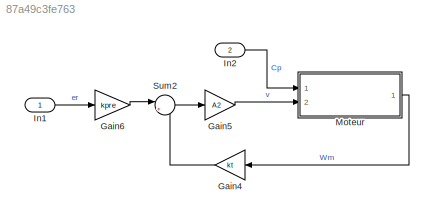
MODEL slx_87a49c3fe763
KIND model
BLOCK [Gain] Gain4
  Gain = kt
  OutDataTypeStr = Inherit: Inherit via internal rule
  ParamDataTypeStr = Inherit: Inherit via internal rule
  SaturateOnIntegerOverflow = off
BLOCK [Gain] Gain5
  Gain = A2
  OutDataTypeStr = Inherit: Inherit via internal rule
  ParamDataTypeStr = Inherit: Inherit via internal rule
  SaturateOnIntegerOverflow = off
BLOCK [Gain] Gain6
  Gain = kpre
  OutDataTypeStr = Inherit: Inherit via internal rule
  ParamDataTypeStr = Inherit: Inherit via internal rule
  SaturateOnIntegerOverflow = off
BLOCK [Inport] In1
  IconDisplay = Port number
BLOCK [Inport] In2
  IconDisplay = Port number
  Port = 2
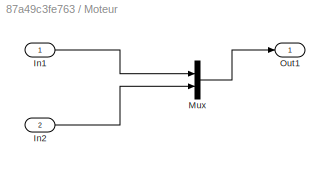
BLOCK [SubSystem] Moteur
  FunctionWithSeparateData = off
  MaskHideContents = off
  MinAlgLoopOccurrences = off
  Opaque = off
  Ports = [2, 1]
  PropExecContextOutsideSubsystem = off
  RTWSystemCode = Auto
  RequestExecContextInheritance = off
BLOCK [Inport] Moteur/In1
  IconDisplay = Port number
BLOCK [Inport] Moteur/In2
  IconDisplay = Port number
  Port = 2
BLOCK [Mux] Moteur/Mux
  DisplayOption = bar
  Inputs = 2
  Ports = [2, 1]
BLOCK [Outport] Moteur/Out1
  IconDisplay = Port number
BLOCK [Sum] Sum2
  IconShape = round
  InputSameDT = off
  Inputs = |+-
  OutDataTypeStr = Inherit: Inherit via internal rule
  Ports = [2, 1]
  SaturateOnIntegerOverflow = off
LINE Gain4:1 -> Sum2:2
LINE Gain5:1 -> Moteur:2
LINE Gain6:1 -> Sum2:1
LINE In1:1 -> Gain6:1
LINE In2:1 -> Moteur:1
LINE Moteur/In1:1 -> Moteur/Mux:1
LINE Moteur/In2:1 -> Moteur/Mux:2
LINE Moteur/Mux:1 -> Moteur/Out1:1
LINE Moteur:1 -> Gain4:1
LINE Sum2:1 -> Gain5:1
